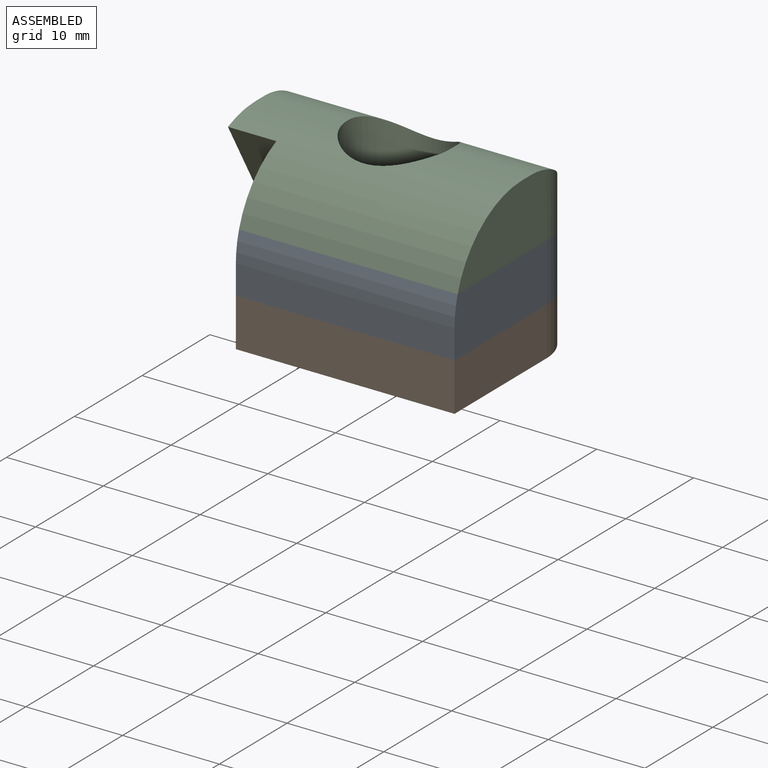
[diagram: assembled view]
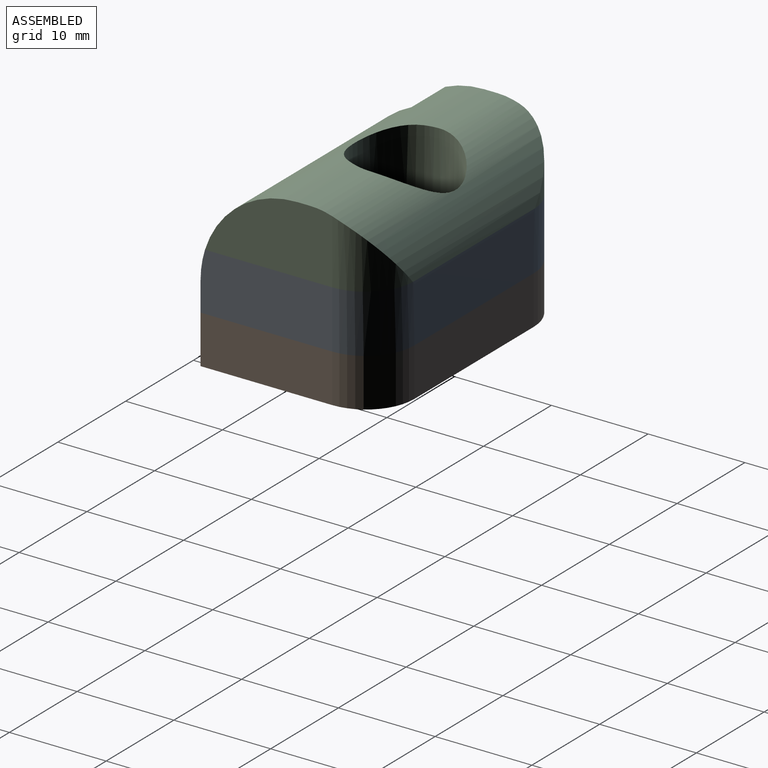
[diagram: assembled view, second angle]
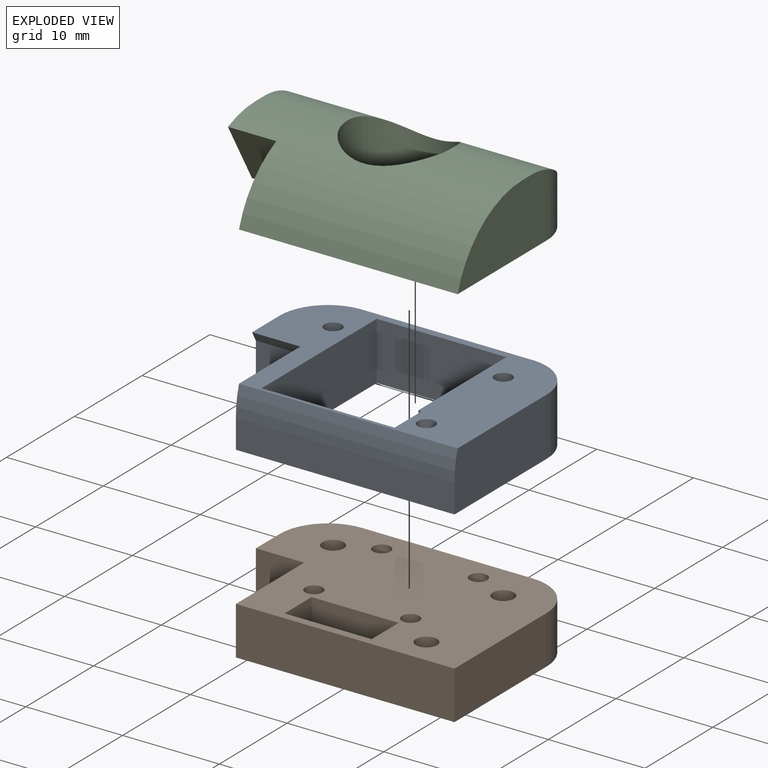
[diagram: exploded view]
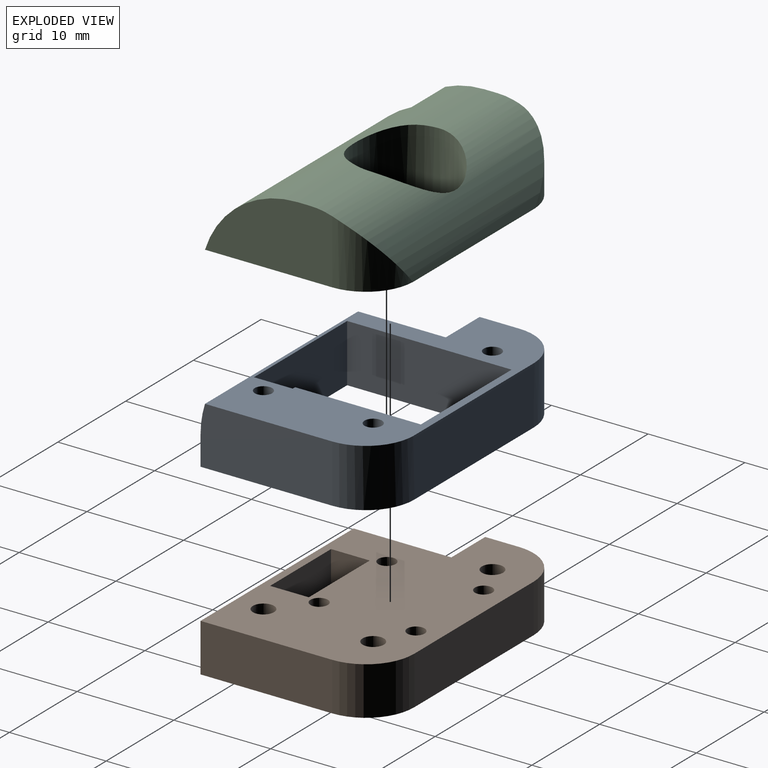
[diagram: exploded view, second angle]
ASSEMBLY  parts=3 mates=2
PART A: 22 faces, bbox 27.6x18.6x6 mm
  f0: plane 22.6x3mm, normal (0,-1,0), area 67.8mm2, adj f12,f14,f16,f19
  f1: plane 5x5mm, normal (0,-1,0), area 25mm2, adj f12,f16,f17,f18
  f2: plane 17.6x5.75mm, normal (0,1,0), area 101.2mm2, adj f12,f13,f15,f20
  f3: plane 6x4mm, normal (-1,0,0), area 24mm2, adj f4,f8,f12,f21
  f4: plane 6x0.35mm, normal (0,-1,0), area 2.1mm2, adj f3,f5,f12,f21
  f5: plane 13x6mm, normal (-1,0,0), area 78mm2, adj f4,f6,f12,f21
  f6: plane 13.4x6mm, normal (0,-1,0), area 80.4mm2, adj f5,f7,f12,f21
  f7: plane 17x6mm, normal (1,0,0), area 102mm2, adj f6,f8,f12,f21
  f8: plane 13.75x6mm, normal (0,1,0), area 82.5mm2, adj f3,f7,f12,f21
  f9: cylinder r=0.9mm len=6mm, axis (0,0,-1), area 33.9mm2, adj f12,f21
  f10: cylinder r=0.9mm len=6mm, axis (0,0,-1), area 33.9mm2, adj f12,f21
  f11: cylinder r=0.9mm len=6mm, axis (0,0,-1), area 33.9mm2, adj f12,f21
  f12: plane 27.6x18.6mm, normal (0,0,-1), area 215.3mm2, adj f0,f1,f2,f3,f4,f5,f6,f7
  f13: cylinder r=5mm len=6mm, axis (0,0,-1), area 47.1mm2, adj f2,f12,f14,f20,f21
  f14: plane 13.6x6mm, normal (1,0,0), area 81.1mm2, adj f0,f12,f13,f19,f21
  f15: cylinder r=5mm len=6mm, axis (0,0,-1), area 47.1mm2, adj f2,f12,f18,f20,f21
  f16: plane 10.1x6mm, normal (-1,0,0), area 59.9mm2, adj f0,f1,f12,f17,f19,f21
  f17: plane 5x1mm, normal (0,-0.87,-0.5), area 5.8mm2, adj f1,f16,f18,f21
  f18: plane 6x4.08mm, normal (-1,0,0), area 21.3mm2, adj f1,f12,f15,f17,f21
  f19: cylinder r=10mm len=22.6mm, axis (-1,0,0), area 68.9mm2, adj f0,f14,f16,f21
  f20: cylinder r=7.25mm len=18.02mm, axis (1,0,0), area 4.5mm2, adj f2,f13,f15,f21
  f21: plane 27.6x18.14mm, normal (0,0,1), area 207.7mm2, adj f3,f4,f5,f6,f7,f8,f9,f10
PART B: 24 faces, bbox 27.6x18.6x5 mm
  f0: plane 5x3.5mm, normal (-1,0,0), area 17.5mm2, adj f3,f4,f6,f22
  f1: plane 17.6x5mm, normal (0,1,0), area 88mm2, adj f3,f4,f22,f23
  f2: plane 13.6x5mm, normal (1,0,0), area 68mm2, adj f3,f4,f14,f23
  f3: plane 27.6x18.6mm, normal (0,0,-1), area 351.7mm2, adj f0,f1,f2,f5,f6,f7,f8,f9
  f4: plane 27.6x18.6mm, normal (0,0,1), area 394.5mm2, adj f0,f1,f2,f5,f6,f7,f8,f9
  f5: plane 10.1x5mm, normal (-1,0,0), area 50.5mm2, adj f3,f4,f6,f14
  f6: plane 5x5mm, normal (0,-1,0), area 25mm2, adj f0,f3,f4,f5
  f7: plane 5x4mm, normal (1,0,0), area 20mm2, adj f3,f4,f8,f13
  f8: plane 9x5mm, normal (0,1,0), area 45mm2, adj f3,f4,f7,f9
  f9: plane 5x4mm, normal (-1,0,0), area 20mm2, adj f3,f4,f8,f13
  f10: cylinder r=1.1mm len=3.7mm, axis (0,0,1), area 25.6mm2, adj f4,f15
  f11: cylinder r=1.1mm len=3.7mm, axis (0,0,1), area 25.6mm2, adj f4,f16
  f12: cylinder r=1.1mm len=3.7mm, axis (0,0,1), area 25.6mm2, adj f4,f17
  f13: plane 9x5mm, normal (0,-1,0), area 45mm2, adj f3,f4,f7,f9
  f14: plane 22.6x5mm, normal (0,-1,0), area 113mm2, adj f2,f3,f4,f5
  f15: cone r=1.1mm half-angle=45deg, axis (0,0,-1), area 20.2mm2, adj f3,f10
  f16: cone r=1.1mm half-angle=45deg, axis (0,0,-1), area 20.2mm2, adj f3,f11
  f17: cone r=1.1mm half-angle=45deg, axis (0,0,-1), area 20.2mm2, adj f3,f12
  f18: cylinder r=0.9mm len=5mm, axis (0,0,-1), area 28.3mm2, adj f3,f4
  f19: cylinder r=0.9mm len=5mm, axis (0,0,-1), area 28.3mm2, adj f3,f4
  f20: cylinder r=0.9mm len=5mm, axis (0,0,-1), area 28.3mm2, adj f3,f4
  f21: cylinder r=0.9mm len=5mm, axis (0,0,-1), area 28.3mm2, adj f3,f4
  f22: cylinder r=5mm len=5mm, axis (0,0,-1), area 39.3mm2, adj f0,f1,f3,f4
  f23: cylinder r=5mm len=5mm, axis (0,0,-1), area 39.3mm2, adj f1,f2,f3,f4
PART C: 19 faces, bbox 27.6x18.1x7 mm
  f0: cylinder r=7.25mm len=27.6mm, axis (1,0,0), area 227.9mm2, adj f2,f3,f6,f7,f8,f10,f11,f12
  f1: cylinder r=10mm len=27.6mm, axis (-1,0,0), area 279.3mm2, adj f2,f3,f4,f5,f8,f10,f11,f12
  f2: plane 13.14x7mm, normal (1,0,0), area 73.9mm2, adj f0,f1,f7,f10,f12
  f3: plane 7.63x7mm, normal (-1,0,0), area 41.1mm2, adj f0,f1,f4,f6,f8,f12
  f4: plane 6.15x5mm, normal (0,-0.87,-0.5), area 35.5mm2, adj f1,f3,f5,f12
  f5: plane 9.06x6.15mm, normal (-1,0,0), area 32.8mm2, adj f1,f4,f12
  f6: cylinder r=5mm len=6.64mm, axis (0,0,-1), area 29.9mm2, adj f0,f3,f12
  f7: cylinder r=5mm len=6.64mm, axis (0,0,-1), area 29.9mm2, adj f0,f2,f12
  f8: plane 8.82x1.35mm, normal (0,0,1), area 11.7mm2, adj f0,f1,f3,f11
  f9: plane 17x13.75mm, normal (0,0,-1), area 144.3mm2, adj f11,f12
  f10: plane 8.82x1.35mm, normal (0,0,1), area 11.7mm2, adj f0,f1,f2,f11
  f11: cylinder r=5.2mm len=10.4mm, axis (0,0,1), area 205.3mm2, adj f0,f1,f8,f9,f10
  f12: plane 27.6x18.14mm, normal (0,0,-1), area 207.7mm2, adj f0,f1,f2,f3,f4,f5,f6,f7
  f13: plane 1.8x1.8mm, normal (0,0,-1), area 2.5mm2, adj f14
  f14: cylinder r=0.9mm len=2mm, axis (0,0,-1), area 11.3mm2, adj f12,f13
  f15: plane 1.8x1.8mm, normal (0,0,-1), area 2.5mm2, adj f16
  f16: cylinder r=0.9mm len=2mm, axis (0,0,-1), area 11.3mm2, adj f12,f15
  f17: plane 1.8x1.8mm, normal (0,0,-1), area 2.5mm2, adj f18
  f18: cylinder r=0.9mm len=2mm, axis (0,0,-1), area 11.3mm2, adj f12,f17
PLACE A t=(0.16,26.23,-0.16)mm
PLACE B t=(0.16,26.23,-0.16)mm
PLACE C t=(0.16,26.23,-0.16)mm
MATE fastened A.f9 <-> B.f12  axis (0,0,-1) through (-42.8,-28.35,-0.16)mm
MATE fastened C.f18 <-> A.f9  axis (0,0,-1) through (-42.8,-28.35,5.84)mm
